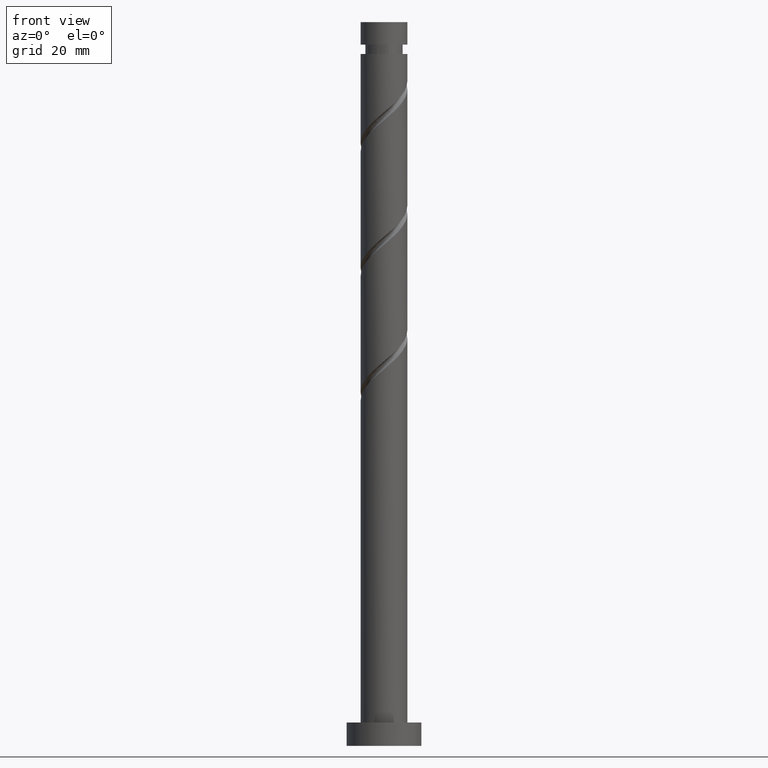
[diagram: clean part render]
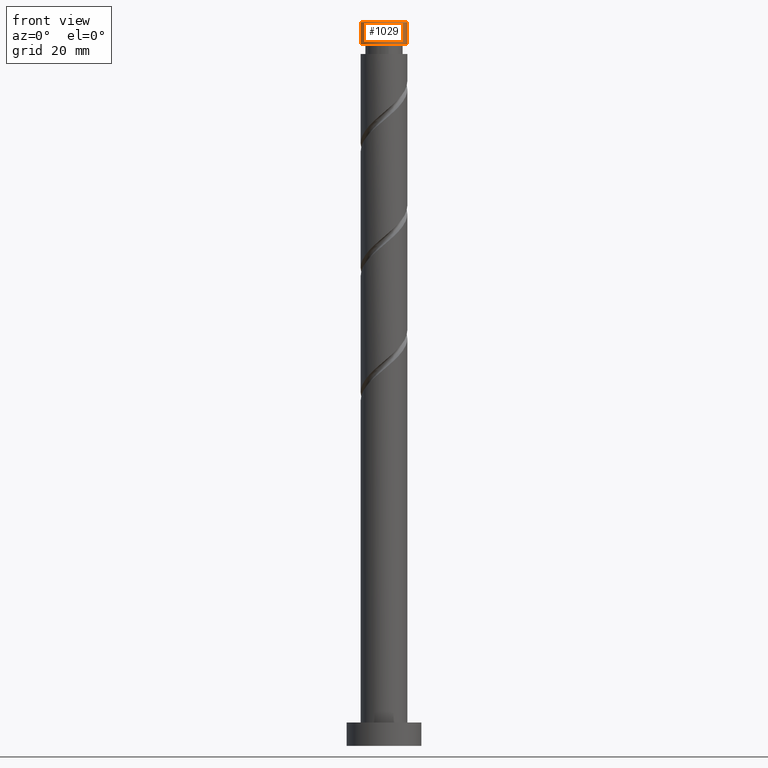
[diagram: same view with one face highlighted and labeled with its STEP entity id]
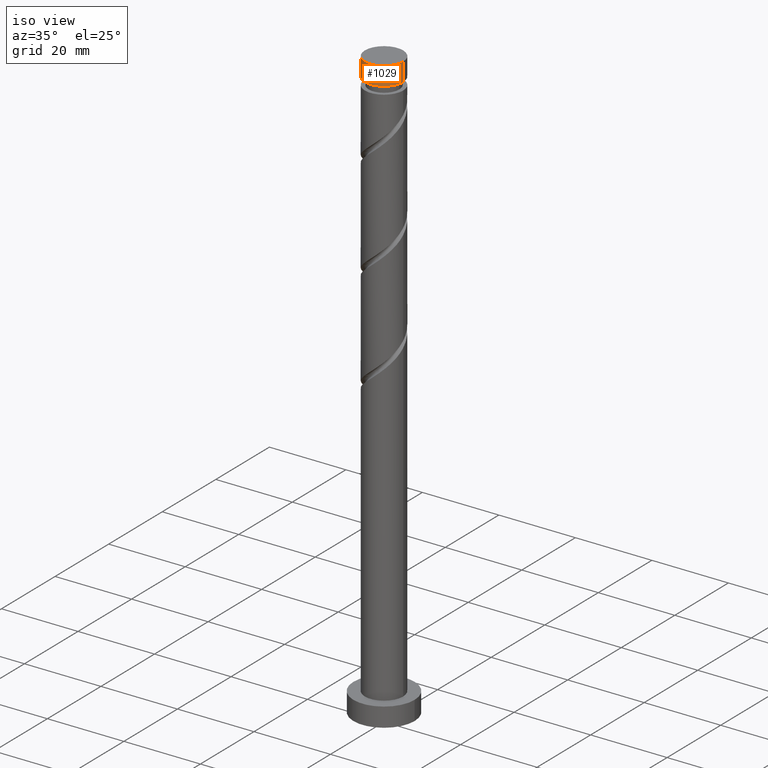
[diagram: same view with one face highlighted and labeled with its STEP entity id]
A machine part, front view. The second image highlights one B-rep face of the part: STEP entity #1029.
A second angle (iso view) of the same face is appended — the face is thin or edge-on in the first view.
In plain terms, the highlighted cylindrical surface (edge-blend (fillet) strip) has radius 5 mm, axis along (-0, -0, -1).
Its self-contained STEP definition (entity closure, byte-faithful):
#4 = VERTEX_POINT ( 'NONE', #12 ) ;
#7 = VERTEX_POINT ( 'NONE', #1289 ) ;
#12 = CARTESIAN_POINT ( 'NONE',  ( 5.000000000000000000, 6.123233995736766282E-16, 155.0000000000000000 ) ) ;
#41 = DIRECTION ( 'NONE',  ( -0.000000000000000000, -0.000000000000000000, -1.000000000000000000 ) ) ;
#89 = EDGE_CURVE ( 'NONE', #469, #4, #525, .T. ) ;
#167 = DIRECTION ( 'NONE',  ( -0.000000000000000000, -0.000000000000000000, -1.000000000000000000 ) ) ;
#172 = DIRECTION ( 'NONE',  ( -1.000000000000000000, 0.000000000000000000, 0.000000000000000000 ) ) ;
#201 = CIRCLE ( 'NONE', #413, 4.999999999999993783 ) ;
#209 = EDGE_CURVE ( 'NONE', #469, #7, #1183, .T. ) ;
#267 = EDGE_CURVE ( 'NONE', #4, #1416, #1060, .T. ) ;
#287 = CARTESIAN_POINT ( 'NONE',  ( 5.000000000000000000, 6.123233995736766282E-16, 155.0000000000000000 ) ) ;
#290 = ORIENTED_EDGE ( 'NONE', *, *, #209, .T. ) ;
#349 = VECTOR ( 'NONE', #167, 1000.000000000000000 ) ;
#380 = CARTESIAN_POINT ( 'NONE',  ( 0.000000000000000000, 0.000000000000000000, 155.0000000000000000 ) ) ;
#413 = AXIS2_PLACEMENT_3D ( 'NONE', #1366, #1074, #172 ) ;
#441 = CARTESIAN_POINT ( 'NONE',  ( -5.000000000000000000, 0.000000000000000000, 155.0000000000000000 ) ) ;
#465 = EDGE_CURVE ( 'NONE', #1416, #7, #201, .T. ) ;
#469 = VERTEX_POINT ( 'NONE', #441 ) ;
#505 = DIRECTION ( 'NONE',  ( 0.000000000000000000, 0.000000000000000000, 1.000000000000000000 ) ) ;
#525 = CIRCLE ( 'NONE', #1384, 5.000000000000000000 ) ;
#608 = CARTESIAN_POINT ( 'NONE',  ( 0.000000000000000000, 0.000000000000000000, 155.0000000000000000 ) ) ;
#609 = VECTOR ( 'NONE', #41, 1000.000000000000000 ) ;
#724 = AXIS2_PLACEMENT_3D ( 'NONE', #608, #1650, #1147 ) ;
#864 = EDGE_LOOP ( 'NONE', ( #1201, #1443, #290, #1622 ) ) ;
#963 = CARTESIAN_POINT ( 'NONE',  ( -5.000000000000000000, 0.000000000000000000, 155.0000000000000000 ) ) ;
#1029 = ADVANCED_FACE ( 'NONE', ( #1529 ), #1258, .T. ) ;
#1060 = LINE ( 'NONE', #287, #609 ) ;
#1074 = DIRECTION ( 'NONE',  ( -0.000000000000000000, -0.000000000000000000, -1.000000000000000000 ) ) ;
#1147 = DIRECTION ( 'NONE',  ( -1.000000000000000000, 0.000000000000000000, 0.000000000000000000 ) ) ;
#1183 = LINE ( 'NONE', #963, #349 ) ;
#1201 = ORIENTED_EDGE ( 'NONE', *, *, #267, .F. ) ;
#1258 = CYLINDRICAL_SURFACE ( 'NONE', #724, 5.000000000000000000 ) ;
#1289 = CARTESIAN_POINT ( 'NONE',  ( -4.999999999999993783, 0.000000000000000000, 150.1789626181958965 ) ) ;
#1344 = CARTESIAN_POINT ( 'NONE',  ( 4.999999999999993783, 6.123233995736762338E-16, 150.1789626181958965 ) ) ;
#1366 = CARTESIAN_POINT ( 'NONE',  ( 0.000000000000000000, 0.000000000000000000, 150.1789626181958965 ) ) ;
#1384 = AXIS2_PLACEMENT_3D ( 'NONE', #380, #505, #1540 ) ;
#1416 = VERTEX_POINT ( 'NONE', #1344 ) ;
#1443 = ORIENTED_EDGE ( 'NONE', *, *, #89, .F. ) ;
#1529 = FACE_OUTER_BOUND ( 'NONE', #864, .T. ) ;
#1540 = DIRECTION ( 'NONE',  ( 1.000000000000000000, 0.000000000000000000, 0.000000000000000000 ) ) ;
#1622 = ORIENTED_EDGE ( 'NONE', *, *, #465, .F. ) ;
#1650 = DIRECTION ( 'NONE',  ( -0.000000000000000000, -0.000000000000000000, -1.000000000000000000 ) ) ;